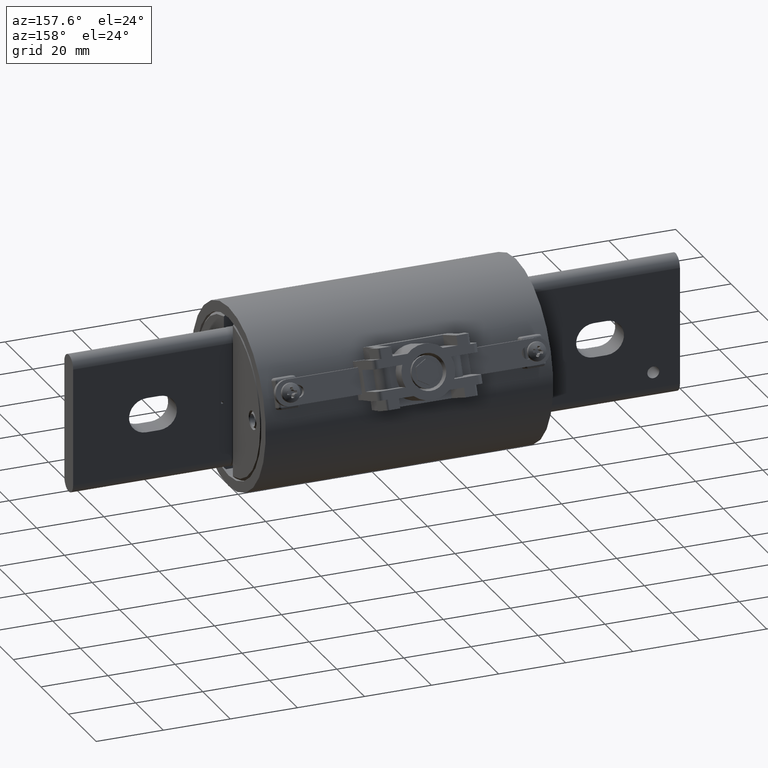
[diagram: clean part render]
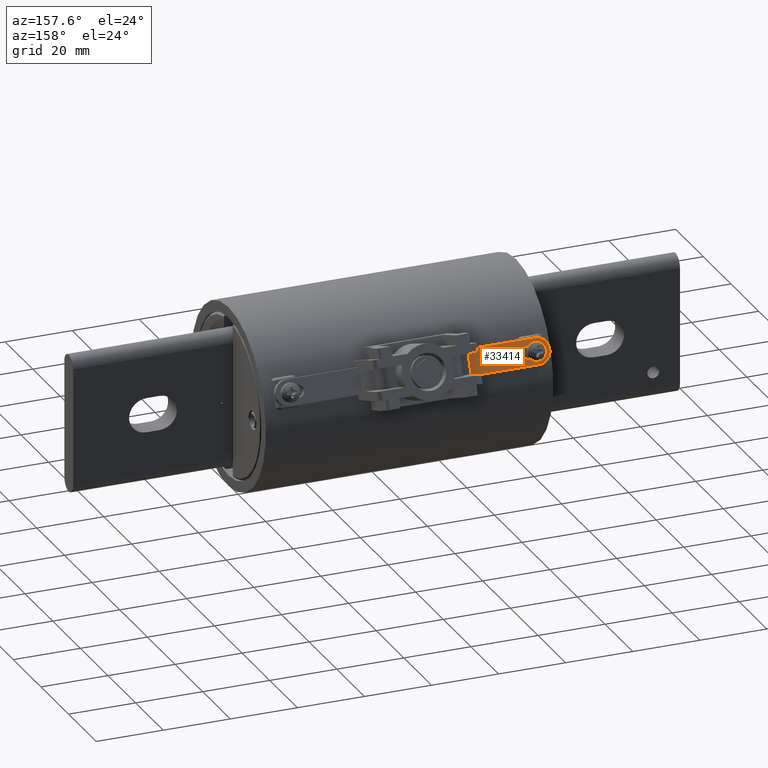
[diagram: same view with one face highlighted and labeled with its STEP entity id]
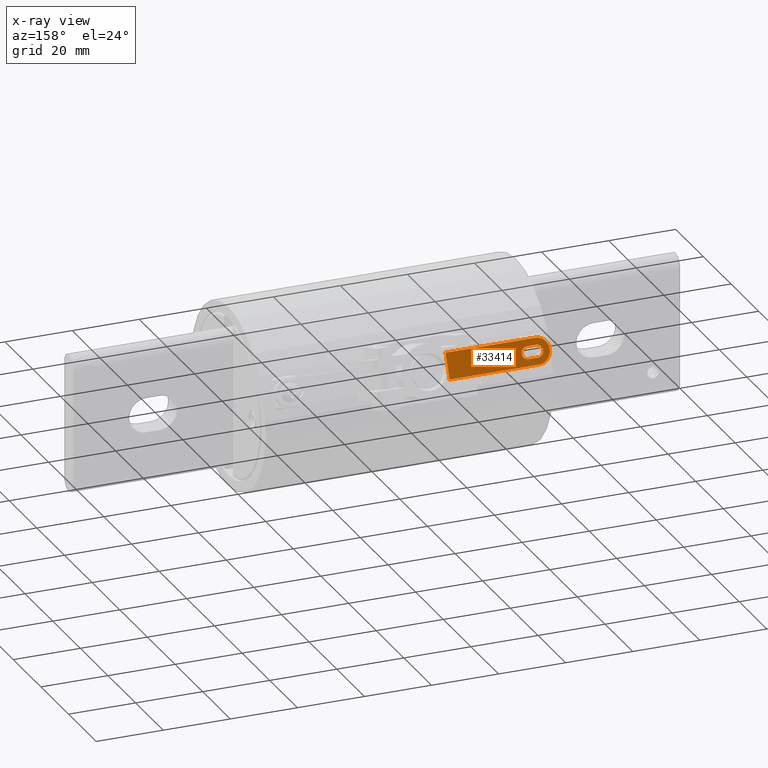
[diagram: x-ray of the same camera — body ghosted, the highlighted face saturated]
A machine part, auxiliary view. The second image highlights one B-rep face of the part: STEP entity #33414.
The next image is the same camera in x-ray: the body ghosted, the highlighted face saturated — about 0% of this face is hidden behind the body in this view.
In plain terms, the highlighted planar face has unit normal (0, -0.9239, -0.3827).
Its self-contained STEP definition (entity closure, byte-faithful):
#990 = FACE_OUTER_BOUND ( 'NONE', #7465, .T. ) ;
#1783 = VERTEX_POINT ( 'NONE', #37040 ) ;
#1853 = EDGE_CURVE ( 'NONE', #29297, #17190, #25762, .T. ) ;
#2012 = ORIENTED_EDGE ( 'NONE', *, *, #42671, .F. ) ;
#5011 = VERTEX_POINT ( 'NONE', #28130 ) ;
#5600 = VERTEX_POINT ( 'NONE', #29188 ) ;
#6077 = LINE ( 'NONE', #34164, #14980 ) ;
#6328 = DIRECTION ( 'NONE',  ( 1.000000000000000000, 1.661617540033790900E-016, 3.115317033270430000E-017 ) ) ;
#7465 = EDGE_LOOP ( 'NONE', ( #9939, #40841, #40609, #14239 ) ) ;
#7613 = ORIENTED_EDGE ( 'NONE', *, *, #12422, .F. ) ;
#7853 = VERTEX_POINT ( 'NONE', #34965 ) ;
#7858 = EDGE_CURVE ( 'NONE', #5011, #10896, #17211, .T. ) ;
#8398 = DIRECTION ( 'NONE',  ( 1.654352457618712100E-016, -0.9238795325112905100, -0.3826834323650807900 ) ) ;
#8468 = ORIENTED_EDGE ( 'NONE', *, *, #1853, .F. ) ;
#9923 = LINE ( 'NONE', #26503, #27715 ) ;
#9939 = ORIENTED_EDGE ( 'NONE', *, *, #29963, .F. ) ;
#9950 = FACE_BOUND ( 'NONE', #42859, .T. ) ;
#9975 = LINE ( 'NONE', #39656, #27764 ) ;
#10735 = DIRECTION ( 'NONE',  ( -1.000000000000000000, -2.557800819640140200E-017, 2.707852382975598400E-017 ) ) ;
#10896 = VERTEX_POINT ( 'NONE', #10910 ) ;
#10910 = CARTESIAN_POINT ( 'NONE',  ( -1.460500000000000100, 1.217386222485227000, 0.3440638383562434900 ) ) ;
#11518 = AXIS2_PLACEMENT_3D ( 'NONE', #27371, #27276, #27174 ) ;
#12422 = EDGE_CURVE ( 'NONE', #7853, #1783, #15770, .T. ) ;
#12725 = DIRECTION ( 'NONE',  ( 1.000000000000000000, 1.661617540033790900E-016, 3.115317033270430000E-017 ) ) ;
#14239 = ORIENTED_EDGE ( 'NONE', *, *, #32502, .F. ) ;
#14980 = VECTOR ( 'NONE', #10735, 39.37007874015748100 ) ;
#15770 = CIRCLE ( 'NONE', #11518, 0.07000000000000007600 ) ;
#17190 = VERTEX_POINT ( 'NONE', #35311 ) ;
#17211 = CIRCLE ( 'NONE', #31948, 0.1480000000000001600 ) ;
#17882 = EDGE_CURVE ( 'NONE', #5011, #5600, #34312, .T. ) ;
#19421 = DIRECTION ( 'NONE',  ( 3.480557390659189800E-017, -0.3826834323650807900, 0.9238795325112905100 ) ) ;
#21450 = DIRECTION ( 'NONE',  ( 1.000000000000000000, 2.557800819640140200E-017, -2.707852382975598400E-017 ) ) ;
#21862 = ORIENTED_EDGE ( 'NONE', *, *, #31005, .F. ) ;
#23315 = LINE ( 'NONE', #41477, #31213 ) ;
#25762 = CIRCLE ( 'NONE', #36352, 0.07000000000000007600 ) ;
#26412 = VECTOR ( 'NONE', #12725, 39.37007874015748100 ) ;
#26503 = CARTESIAN_POINT ( 'NONE',  ( -1.608500000000000000, 1.217386222485226800, 0.3440638383562434900 ) ) ;
#27174 = DIRECTION ( 'NONE',  ( 1.000000000000000000, 0.0000000000000000000, 0.0000000000000000000 ) ) ;
#27276 = DIRECTION ( 'NONE',  ( 4.224265541874713900E-017, 0.9238795325112906200, 0.3826834323650808400 ) ) ;
#27371 = CARTESIAN_POINT ( 'NONE',  ( -1.348500000000000000, 1.160749074495195200, 0.4807980091679144900 ) ) ;
#27715 = VECTOR ( 'NONE', #6328, 39.37007874015748100 ) ;
#27764 = VECTOR ( 'NONE', #19421, 39.37007874015748900 ) ;
#28130 = CARTESIAN_POINT ( 'NONE',  ( -1.460500000000000100, 1.104111926505162900, 0.6175321799795853200 ) ) ;
#28433 = CARTESIAN_POINT ( 'NONE',  ( -1.608500000000000000, 1.217386222485226800, 0.3440638383562434900 ) ) ;
#29188 = CARTESIAN_POINT ( 'NONE',  ( -0.4066352543805128400, 1.104111926505163100, 0.6175321799795855400 ) ) ;
#29297 = VERTEX_POINT ( 'NONE', #41963 ) ;
#29963 = EDGE_CURVE ( 'NONE', #10896, #34427, #9923, .T. ) ;
#31005 = EDGE_CURVE ( 'NONE', #17190, #7853, #23315, .T. ) ;
#31213 = VECTOR ( 'NONE', #21450, 39.37007874015748100 ) ;
#31639 = CARTESIAN_POINT ( 'NONE',  ( -1.458500000000000400, 1.160749074495195200, 0.4807980091679144900 ) ) ;
#31837 = DIRECTION ( 'NONE',  ( -1.000000000000000000, -1.661617540033790900E-016, -3.115317033270429400E-017 ) ) ;
#31948 = AXIS2_PLACEMENT_3D ( 'NONE', #33729, #33693, #33631 ) ;
#32502 = EDGE_CURVE ( 'NONE', #34427, #5600, #9975, .T. ) ;
#33126 = DIRECTION ( 'NONE',  ( 1.000000000000000000, 0.0000000000000000000, 0.0000000000000000000 ) ) ;
#33414 = ADVANCED_FACE ( 'NONE', ( #9950, #990 ), #35039, .F. ) ;
#33631 = DIRECTION ( 'NONE',  ( 1.000000000000000000, 0.0000000000000000000, 0.0000000000000000000 ) ) ;
#33693 = DIRECTION ( 'NONE',  ( -4.224265541874723800E-017, -0.9238795325112906200, -0.3826834323650808400 ) ) ;
#33729 = CARTESIAN_POINT ( 'NONE',  ( -1.460500000000000100, 1.160749074495195200, 0.4807980091679144900 ) ) ;
#34164 = CARTESIAN_POINT ( 'NONE',  ( -1.348500000000000000, 1.187536914760750600, 0.4161264418921242200 ) ) ;
#34312 = LINE ( 'NONE', #42637, #26412 ) ;
#34427 = VERTEX_POINT ( 'NONE', #41348 ) ;
#34965 = CARTESIAN_POINT ( 'NONE',  ( -1.348500000000000000, 1.133961234229639500, 0.5454695764437048600 ) ) ;
#35039 = PLANE ( 'NONE',  #42415 ) ;
#35122 = DIRECTION ( 'NONE',  ( 4.224265541874713900E-017, 0.9238795325112906200, 0.3826834323650808400 ) ) ;
#35311 = CARTESIAN_POINT ( 'NONE',  ( -1.458500000000000400, 1.133961234229639500, 0.5454695764437048600 ) ) ;
#36352 = AXIS2_PLACEMENT_3D ( 'NONE', #31639, #35122, #33126 ) ;
#37040 = CARTESIAN_POINT ( 'NONE',  ( -1.348500000000000000, 1.187536914760750600, 0.4161264418921241100 ) ) ;
#39656 = CARTESIAN_POINT ( 'NONE',  ( -0.4066352543805128400, 1.217386222485227000, 0.3440638383562434900 ) ) ;
#40609 = ORIENTED_EDGE ( 'NONE', *, *, #17882, .T. ) ;
#40841 = ORIENTED_EDGE ( 'NONE', *, *, #7858, .F. ) ;
#41348 = CARTESIAN_POINT ( 'NONE',  ( -0.4066352543805128400, 1.217386222485227000, 0.3440638383562434900 ) ) ;
#41477 = CARTESIAN_POINT ( 'NONE',  ( -1.348500000000000000, 1.133961234229639500, 0.5454695764437048600 ) ) ;
#41963 = CARTESIAN_POINT ( 'NONE',  ( -1.458500000000000400, 1.187536914760750600, 0.4161264418921242200 ) ) ;
#42415 = AXIS2_PLACEMENT_3D ( 'NONE', #28433, #8398, #31837 ) ;
#42637 = CARTESIAN_POINT ( 'NONE',  ( -1.608500000000000000, 1.104111926505162900, 0.6175321799795853200 ) ) ;
#42671 = EDGE_CURVE ( 'NONE', #1783, #29297, #6077, .T. ) ;
#42859 = EDGE_LOOP ( 'NONE', ( #2012, #7613, #21862, #8468 ) ) ;